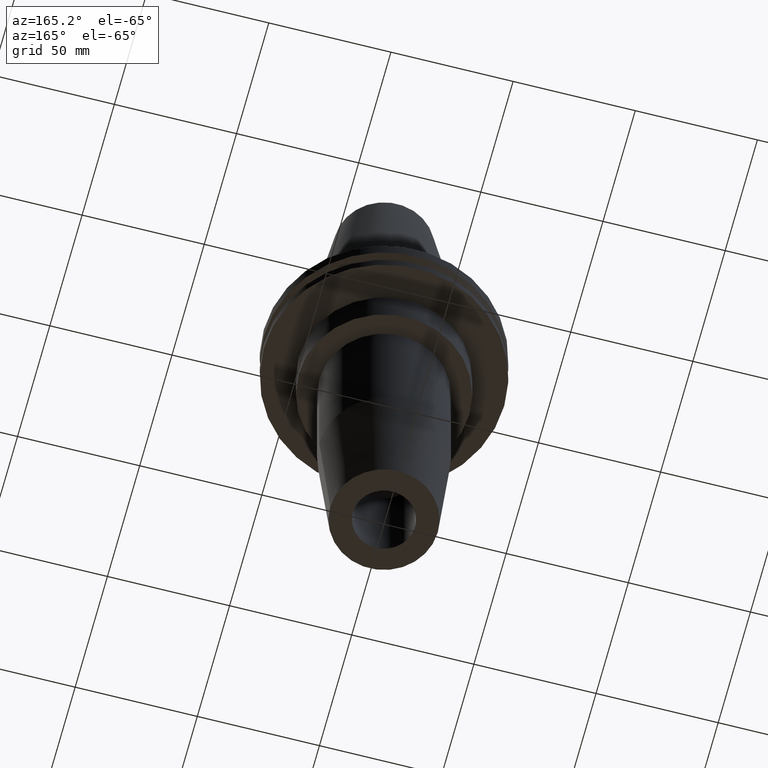
[diagram: clean part render]
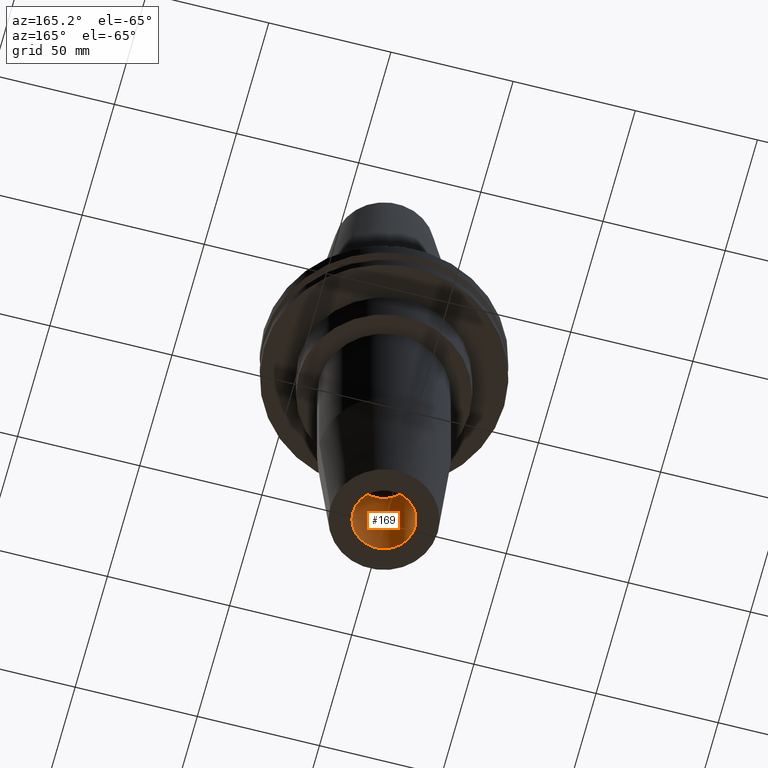
[diagram: same view with one face highlighted and labeled with its STEP entity id]
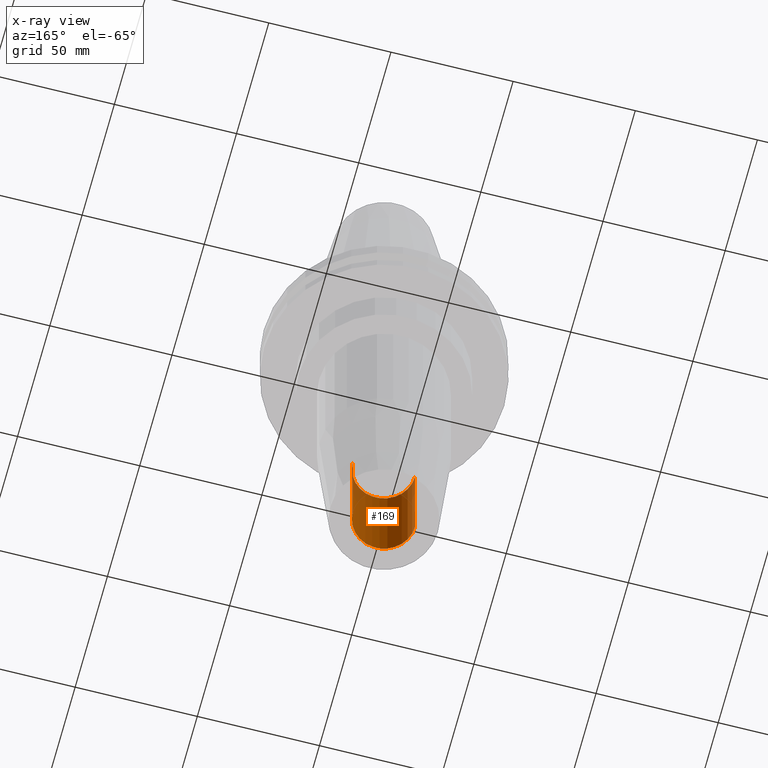
[diagram: x-ray of the same camera — body ghosted, the highlighted face saturated]
A machine part, auxiliary view. The second image highlights one B-rep face of the part: STEP entity #169.
The next image is the same camera in x-ray: the body ghosted, the highlighted face saturated — about 10% of this face is hidden behind the body in this view.
In plain terms, the highlighted cylindrical surface (edge-blend (fillet) strip) has radius 12.7 mm, axis along (-0, -0, 1).
Its self-contained STEP definition (entity closure, byte-faithful):
#28 = DIRECTION ( 'NONE',  ( -0.000000000000000000, -0.000000000000000000, 1.000000000000000000 ) ) ;
#48 = ORIENTED_EDGE ( 'NONE', *, *, #791, .F. ) ;
#75 = VECTOR ( 'NONE', #649, 1000.000000000000000 ) ;
#96 = CYLINDRICAL_SURFACE ( 'NONE', #626, 12.70000000000002061 ) ;
#107 = CARTESIAN_POINT ( 'NONE',  ( 12.70000000000003304, 0.000000000000000000, -105.4000000000000199 ) ) ;
#109 = VERTEX_POINT ( 'NONE', #107 ) ;
#130 = EDGE_CURVE ( 'NONE', #450, #109, #666, .T. ) ;
#137 = EDGE_CURVE ( 'NONE', #325, #450, #481, .T. ) ;
#149 = CARTESIAN_POINT ( 'NONE',  ( 12.70000000000000639, 0.000000000000000000, -152.4000000000000057 ) ) ;
#154 = CARTESIAN_POINT ( 'NONE',  ( 0.000000000000000000, 0.000000000000000000, -152.4000000000000057 ) ) ;
#169 = ADVANCED_FACE ( 'NONE', ( #417 ), #96, .F. ) ;
#191 = VECTOR ( 'NONE', #485, 1000.000000000000000 ) ;
#270 = CIRCLE ( 'NONE', #812, 12.70000000000000639 ) ;
#281 = CARTESIAN_POINT ( 'NONE',  ( -12.70000000000003304, 1.555301434917142377E-15, -105.4000000000000199 ) ) ;
#301 = DIRECTION ( 'NONE',  ( 1.000000000000000000, 0.000000000000000000, 0.000000000000000000 ) ) ;
#325 = VERTEX_POINT ( 'NONE', #645 ) ;
#341 = EDGE_CURVE ( 'NONE', #623, #109, #839, .T. ) ;
#373 = AXIS2_PLACEMENT_3D ( 'NONE', #549, #28, #559 ) ;
#405 = ORIENTED_EDGE ( 'NONE', *, *, #130, .T. ) ;
#417 = FACE_OUTER_BOUND ( 'NONE', #702, .T. ) ;
#450 = VERTEX_POINT ( 'NONE', #281 ) ;
#461 = CARTESIAN_POINT ( 'NONE',  ( 12.70000000000002061, 0.000000000000000000, 0.000000000000000000 ) ) ;
#481 = LINE ( 'NONE', #695, #191 ) ;
#484 = ORIENTED_EDGE ( 'NONE', *, *, #341, .F. ) ;
#485 = DIRECTION ( 'NONE',  ( -0.000000000000000000, -0.000000000000000000, 1.000000000000000000 ) ) ;
#490 = CARTESIAN_POINT ( 'NONE',  ( 0.000000000000000000, 0.000000000000000000, 0.000000000000000000 ) ) ;
#545 = DIRECTION ( 'NONE',  ( -0.000000000000000000, -0.000000000000000000, 1.000000000000000000 ) ) ;
#549 = CARTESIAN_POINT ( 'NONE',  ( 0.000000000000000000, 0.000000000000000000, -105.4000000000000199 ) ) ;
#559 = DIRECTION ( 'NONE',  ( 1.000000000000000000, 0.000000000000000000, 0.000000000000000000 ) ) ;
#623 = VERTEX_POINT ( 'NONE', #149 ) ;
#626 = AXIS2_PLACEMENT_3D ( 'NONE', #490, #545, #301 ) ;
#645 = CARTESIAN_POINT ( 'NONE',  ( -12.70000000000000639, 1.555301434917140208E-15, -152.4000000000000057 ) ) ;
#649 = DIRECTION ( 'NONE',  ( -0.000000000000000000, -0.000000000000000000, 1.000000000000000000 ) ) ;
#666 = CIRCLE ( 'NONE', #373, 12.70000000000003304 ) ;
#689 = DIRECTION ( 'NONE',  ( -0.000000000000000000, -0.000000000000000000, 1.000000000000000000 ) ) ;
#695 = CARTESIAN_POINT ( 'NONE',  ( -12.70000000000002061, 1.555301434917140996E-15, 0.000000000000000000 ) ) ;
#702 = EDGE_LOOP ( 'NONE', ( #48, #769, #405, #484 ) ) ;
#769 = ORIENTED_EDGE ( 'NONE', *, *, #137, .T. ) ;
#791 = EDGE_CURVE ( 'NONE', #325, #623, #270, .T. ) ;
#812 = AXIS2_PLACEMENT_3D ( 'NONE', #154, #689, #823 ) ;
#823 = DIRECTION ( 'NONE',  ( 1.000000000000000000, 0.000000000000000000, 0.000000000000000000 ) ) ;
#839 = LINE ( 'NONE', #461, #75 ) ;